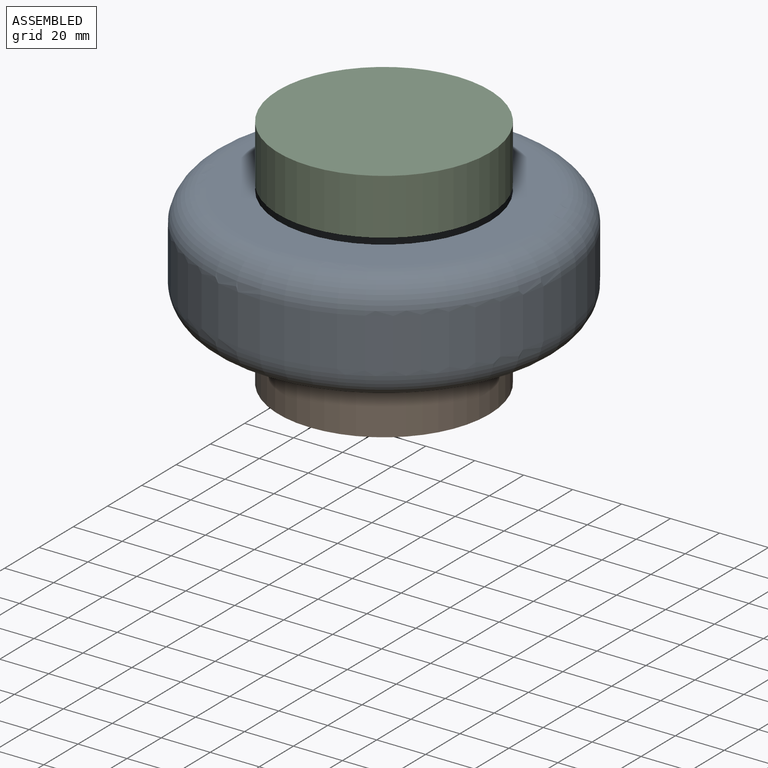
[diagram: assembled view]
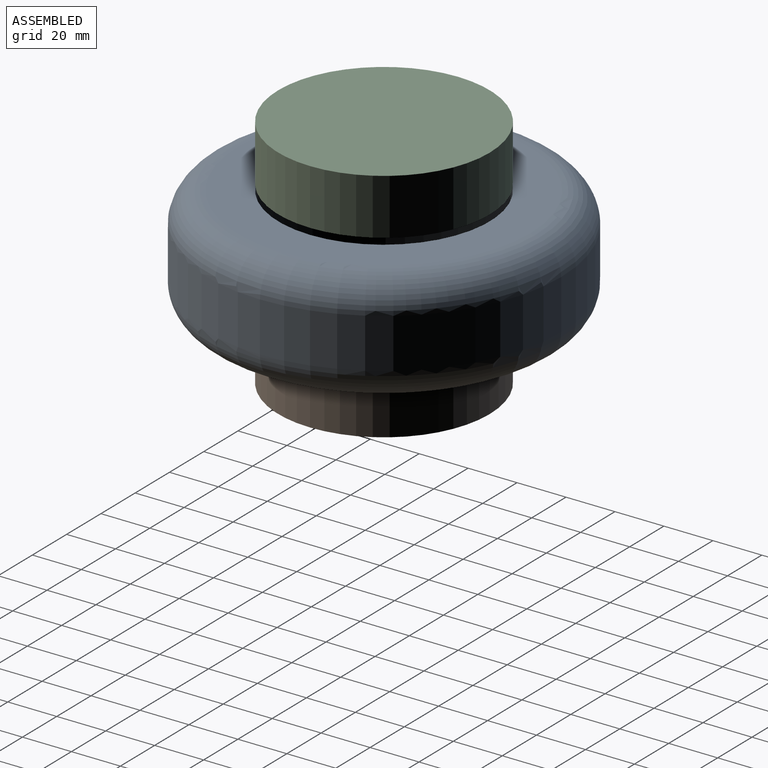
[diagram: assembled view, second angle]
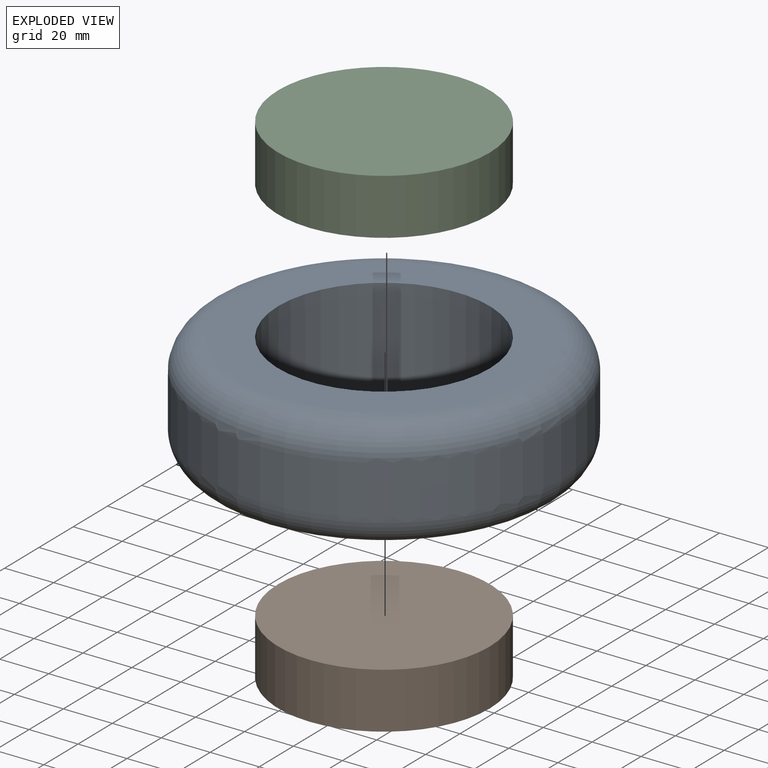
[diagram: exploded view]
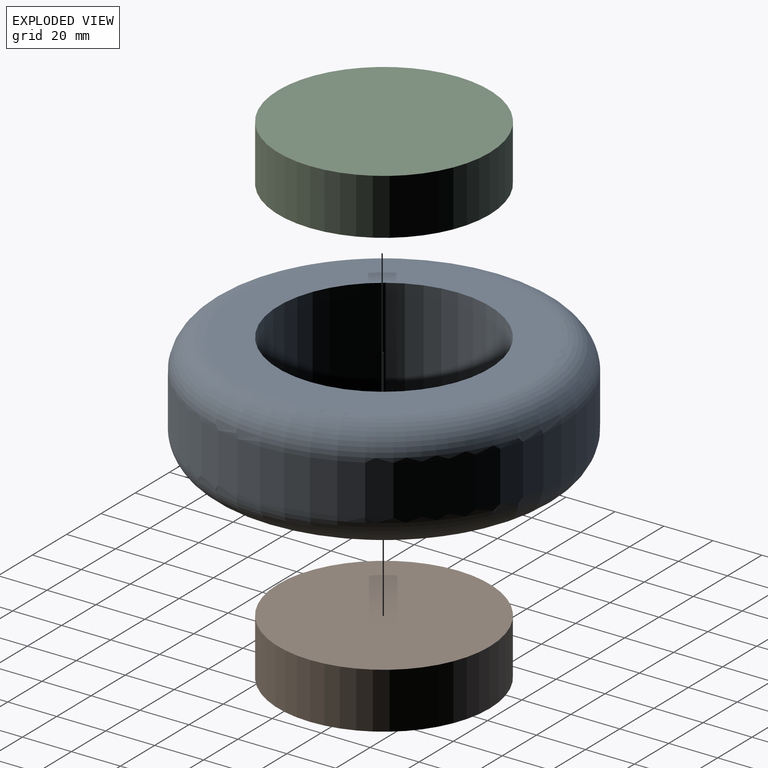
[diagram: exploded view, second angle]
ASSEMBLY  parts=3 mates=2
PART A: 6 faces, bbox 156.7x156.7x45.7 mm
  f0: cylinder r=43.18mm len=86.36mm, axis (0,0,-1), area 12404.2mm2, adj f2,f3
  f1: cylinder r=72.39mm len=144.78mm, axis (0,0,-1), area 9242.3mm2, adj f4,f5
  f2: plane 119.38x119.38mm, normal (0,0,1), area 5335.6mm2, adj f0,f5
  f3: plane 119.38x119.38mm, normal (0,0,-1), area 5335.6mm2, adj f0,f4
  f4: torus R=59.69mm, axis (0,0,1), area 8495.2mm2, adj f1,f3
  f5: torus R=59.69mm, axis (0,0,1), area 8495.2mm2, adj f1,f2
PART B: 3 faces, bbox 86.4x86.4x22.9 mm
  f0: cylinder r=43.18mm len=86.36mm, axis (0,0,-1), area 6202.1mm2, adj f1,f2
  f1: plane 86.36x86.36mm, normal (0,0,1), area 5857.5mm2, adj f0
  f2: plane 86.36x86.36mm, normal (0,0,-1), area 5857.5mm2, adj f0
PART C: same geometry as B
PLACE A t=(-22.28,-3.9,-9.41)mm fixed
PLACE B t=(-22.28,-3.9,-34.81)mm
PLACE C t=(-22.28,-3.9,38.85)mm
MATE slider C.f0 <-> A.f0  axis (0,0,-1) through (-22.28,-3.9,38.85)mm
MATE slider B.f0 <-> A.f0  axis (0,0,1) through (-22.28,-3.9,-11.95)mm
